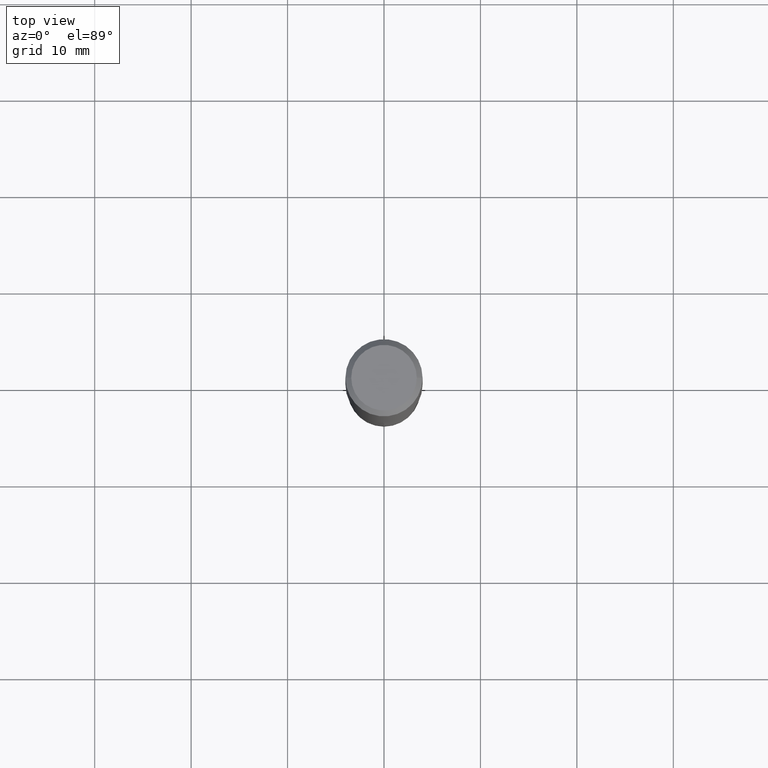
[diagram: clean part render]
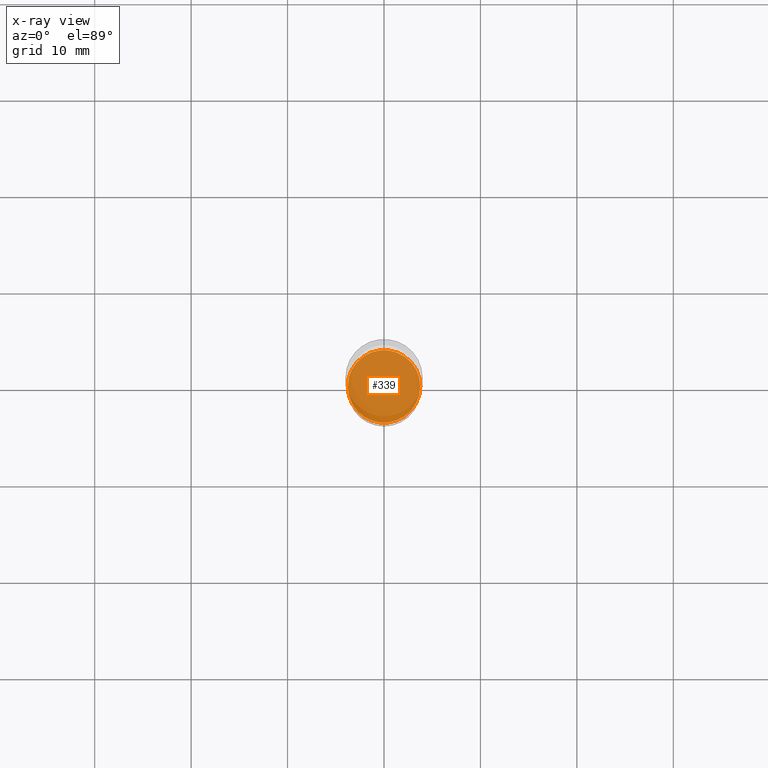
[diagram: x-ray — body ghosted, one internal face saturated and labeled with its STEP entity id]
A machine part, top view, then the same camera in x-ray: the body is ghosted and one INTERNAL B-rep face — a face not visible from any outside direction — is saturated and labeled: STEP entity #339.
In plain terms, the highlighted planar face has unit normal (-0, 0, 1).
Its self-contained STEP definition (entity closure, byte-faithful):
#24 = VERTEX_POINT ( 'NONE', #457 ) ;
#30 = EDGE_CURVE ( 'NONE', #256, #24, #48, .T. ) ;
#36 = CARTESIAN_POINT ( 'NONE',  ( 5.029840240561588648E-29, -7.181278817732581070E-15, -2.056799999999999962 ) ) ;
#40 = CIRCLE ( 'NONE', #70, 0.1479499999999999982 ) ;
#48 = CIRCLE ( 'NONE', #315, 0.1479499999999999982 ) ;
#63 = CARTESIAN_POINT ( 'NONE',  ( 0.1479499999999999982, -8.214408145896263959E-15, -2.056799999999999962 ) ) ;
#66 = CARTESIAN_POINT ( 'NONE',  ( 5.029840240561588648E-29, -7.181278817732581070E-15, -2.056799999999999962 ) ) ;
#70 = AXIS2_PLACEMENT_3D ( 'NONE', #456, #183, #423 ) ;
#106 = DIRECTION ( 'NONE',  ( 1.000000000000000000, -6.982962677686265133E-15, 0.000000000000000000 ) ) ;
#183 = DIRECTION ( 'NONE',  ( -2.445468806185136597E-29, 3.491481338843145583E-15, 1.000000000000000000 ) ) ;
#207 = ORIENTED_EDGE ( 'NONE', *, *, #30, .F. ) ;
#249 = PLANE ( 'NONE',  #454 ) ;
#256 = VERTEX_POINT ( 'NONE', #63 ) ;
#279 = EDGE_CURVE ( 'NONE', #24, #256, #40, .T. ) ;
#282 = DIRECTION ( 'NONE',  ( 1.000000000000000000, -6.982962677686265922E-15, 4.876176775795935793E-29 ) ) ;
#315 = AXIS2_PLACEMENT_3D ( 'NONE', #36, #351, #106 ) ;
#339 = ADVANCED_FACE ( 'NONE', ( #420 ), #249, .F. ) ;
#351 = DIRECTION ( 'NONE',  ( -2.445468806185136597E-29, 3.491481338843145583E-15, 1.000000000000000000 ) ) ;
#389 = EDGE_LOOP ( 'NONE', ( #207, #403 ) ) ;
#403 = ORIENTED_EDGE ( 'NONE', *, *, #279, .F. ) ;
#420 = FACE_OUTER_BOUND ( 'NONE', #389, .T. ) ;
#423 = DIRECTION ( 'NONE',  ( 1.000000000000000000, -6.982962677686265133E-15, 0.000000000000000000 ) ) ;
#448 = DIRECTION ( 'NONE',  ( -2.438088387897960049E-29, 3.491481338843145188E-15, 1.000000000000000000 ) ) ;
#454 = AXIS2_PLACEMENT_3D ( 'NONE', #66, #448, #282 ) ;
#456 = CARTESIAN_POINT ( 'NONE',  ( 5.029840240561588648E-29, -7.181278817732581070E-15, -2.056799999999999962 ) ) ;
#457 = CARTESIAN_POINT ( 'NONE',  ( -0.1479499999999999982, -6.127381613001401460E-15, -2.056799999999999962 ) ) ;